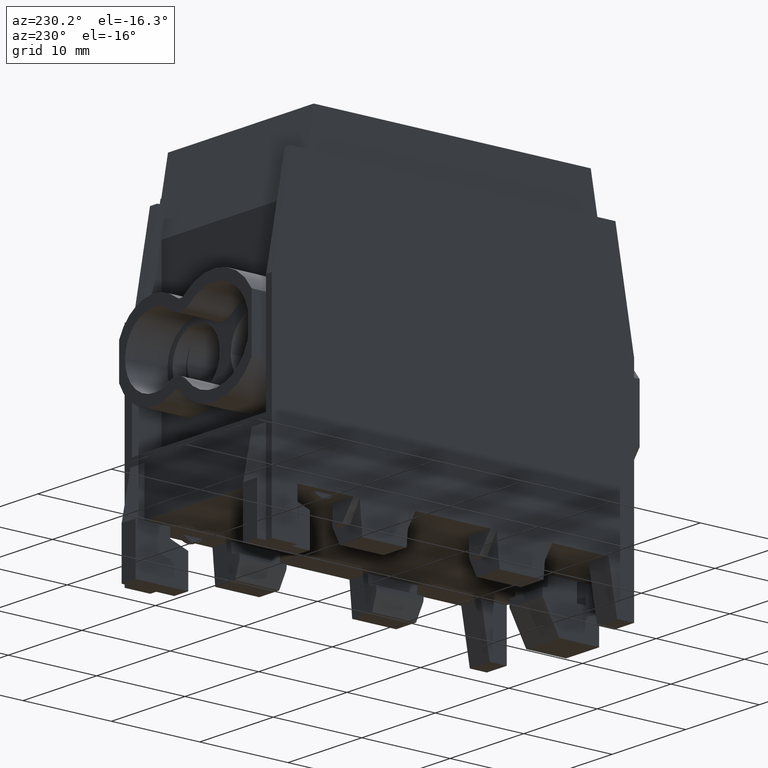
[diagram: clean part render]
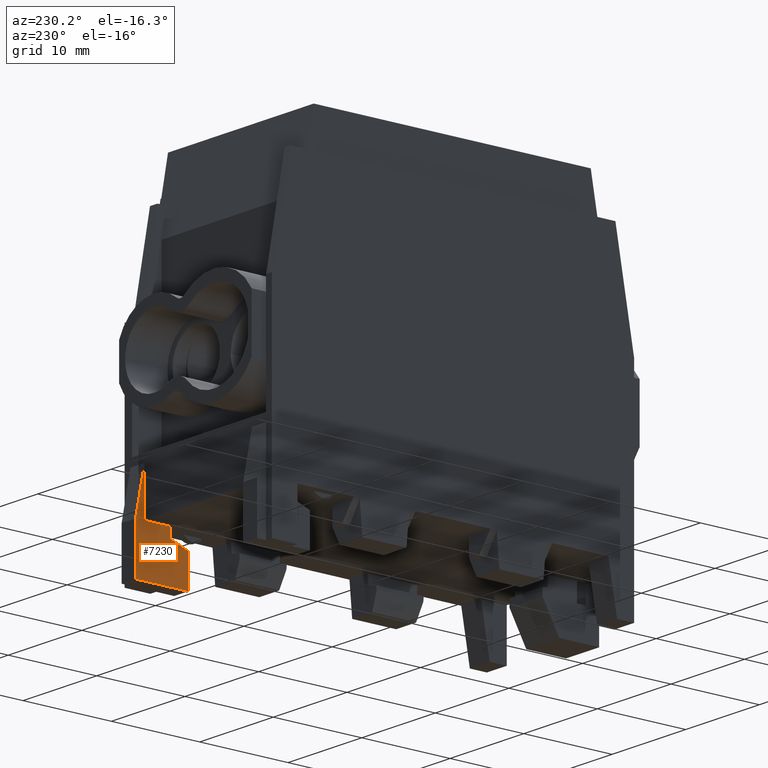
[diagram: same view with one face highlighted and labeled with its STEP entity id]
A machine part, auxiliary view. The second image highlights one B-rep face of the part: STEP entity #7230.
In plain terms, the highlighted planar face has unit normal (1, -0, 0).
Its self-contained STEP definition (entity closure, byte-faithful):
#5240=CARTESIAN_POINT('',(7.3,17.6,-36.845359338705));
#5250=VERTEX_POINT('',#5240);
#5280=CARTESIAN_POINT('',(7.3,17.6,0.));
#5290=DIRECTION('',(-5.55111512312577E-17,-3.33066907387547E-16,1.));
#5300=VECTOR('',#5290,1.);
#5310=LINE('',#5280,#5300);
#5320=CARTESIAN_POINT('',(7.3,17.6,-35.745359338705));
#5330=VERTEX_POINT('',#5320);
#5340=EDGE_CURVE('',#5250,#5330,#5310,.T.);
#5790=CARTESIAN_POINT('',(7.3,21.5,-41.245359338705));
#5800=VERTEX_POINT('',#5790);
#5830=CARTESIAN_POINT('',(7.3,1.25137083378762E-14,-41.245359338705));
#5840=DIRECTION('',(-1.70544636617789E-32,-1.,-5.80952514931361E-16));
#5850=VECTOR('',#5840,1.);
#5860=LINE('',#5830,#5850);
#5870=CARTESIAN_POINT('',(7.3,15.55,-41.245359338705));
#5880=VERTEX_POINT('',#5870);
#5890=EDGE_CURVE('',#5800,#5880,#5860,.T.);
#6610=CARTESIAN_POINT('',(7.3,17.6,-29.645359338705));
#6620=DIRECTION('',(1.,-4.93038065763132E-32,5.55111512312577E-17));
#6630=DIRECTION('',(-5.55111512312577E-17,-3.03396758775072E-16,1.));
#6640=AXIS2_PLACEMENT_3D('',#6610,#6620,#6630);
#6650=PLANE('',#6640);
#6660=ORIENTED_EDGE('',*,*,#5340,.T.);
#6670=CARTESIAN_POINT('',(7.3,0.,-43.25123546179));
#6680=DIRECTION('',(0.,0.93969262078591,0.342020143325663));
#6690=VECTOR('',#6680,1.);
#6700=LINE('',#6670,#6690);
#6710=CARTESIAN_POINT('',(7.3,15.55,-37.5914983189507));
#6720=VERTEX_POINT('',#6710);
#6730=EDGE_CURVE('',#6720,#5250,#6700,.T.);
#6740=ORIENTED_EDGE('',*,*,#6730,.T.);
#6750=CARTESIAN_POINT('',(7.3,15.55,1.22284783605415E-14));
#6760=DIRECTION('',(-5.55111512312578E-17,-5.80952514931361E-16,1.));
#6770=VECTOR('',#6760,1.);
#6780=LINE('',#6750,#6770);
#6790=EDGE_CURVE('',#5880,#6720,#6780,.T.);
#6800=ORIENTED_EDGE('',*,*,#6790,.T.);
#6810=ORIENTED_EDGE('',*,*,#5890,.T.);
#6820=CARTESIAN_POINT('',(7.3,21.5,1.40336890752532E-14));
#6830=DIRECTION('',(-5.55111512312578E-17,-5.80952514931361E-16,1.));
#6840=VECTOR('',#6830,1.);
#6850=LINE('',#6820,#6840);
#6860=CARTESIAN_POINT('',(7.3,21.5,-35.745359338705));
#6870=VERTEX_POINT('',#6860);
#6880=EDGE_CURVE('',#5800,#6870,#6850,.T.);
#6890=ORIENTED_EDGE('',*,*,#6880,.F.);
#6900=CARTESIAN_POINT('',(7.3,14.6258924348644,1.19481071205199E-14));
#6910=DIRECTION('',(-5.45123083884128E-17,-0.188847393650125,
0.982006446980647));
#6920=VECTOR('',#6910,1.);
#6930=LINE('',#6900,#6920);
#6940=CARTESIAN_POINT('',(7.3,20.5119092623727,-30.6072875030428));
#6950=VERTEX_POINT('',#6940);
#6960=EDGE_CURVE('',#6870,#6950,#6930,.T.);
#6970=ORIENTED_EDGE('',*,*,#6960,.F.);
#6980=CARTESIAN_POINT('',(7.3,21.2975144199572,-30.4562095881227));
#6990=DIRECTION('',(-1.,2.77555756156289E-16,-5.55111512312576E-17));
#7000=DIRECTION('',(-2.62078405713524E-16,-0.982006446980649,
-0.188847393650117));
#7010=AXIS2_PLACEMENT_3D('',#6980,#6990,#7000);
#7020=CIRCLE('',#7010,0.8);
#7030=CARTESIAN_POINT('',(7.3,20.5,-30.5192234751664));
#7040=VERTEX_POINT('',#7030);
#7050=EDGE_CURVE('',#6950,#7040,#7020,.T.);
#7060=ORIENTED_EDGE('',*,*,#7050,.F.);
#7070=CARTESIAN_POINT('',(7.3,20.5,1.37302923164782E-14));
#7080=DIRECTION('',(-5.55111512312577E-17,-3.03396758775072E-16,1.));
#7090=VECTOR('',#7080,1.);
#7100=LINE('',#7070,#7090);
#7110=CARTESIAN_POINT('',(7.3,20.5,-35.745359338705));
#7120=VERTEX_POINT('',#7110);
#7130=EDGE_CURVE('',#7120,#7040,#7100,.T.);
#7140=ORIENTED_EDGE('',*,*,#7130,.T.);
#7150=CARTESIAN_POINT('',(7.3,1.08450261646133E-14,-35.745359338705));
#7160=DIRECTION('',(1.70544636617789E-32,1.,5.80952514931361E-16));
#7170=VECTOR('',#7160,1.);
#7180=LINE('',#7150,#7170);
#7190=EDGE_CURVE('',#5330,#7120,#7180,.T.);
#7200=ORIENTED_EDGE('',*,*,#7190,.T.);
#7210=EDGE_LOOP('',(#7200,#7140,#7060,#6970,#6890,#6810,#6800,#6740,
#6660));
#7220=FACE_OUTER_BOUND('',#7210,.T.);
#7230=ADVANCED_FACE('',(#7220),#6650,.F.);